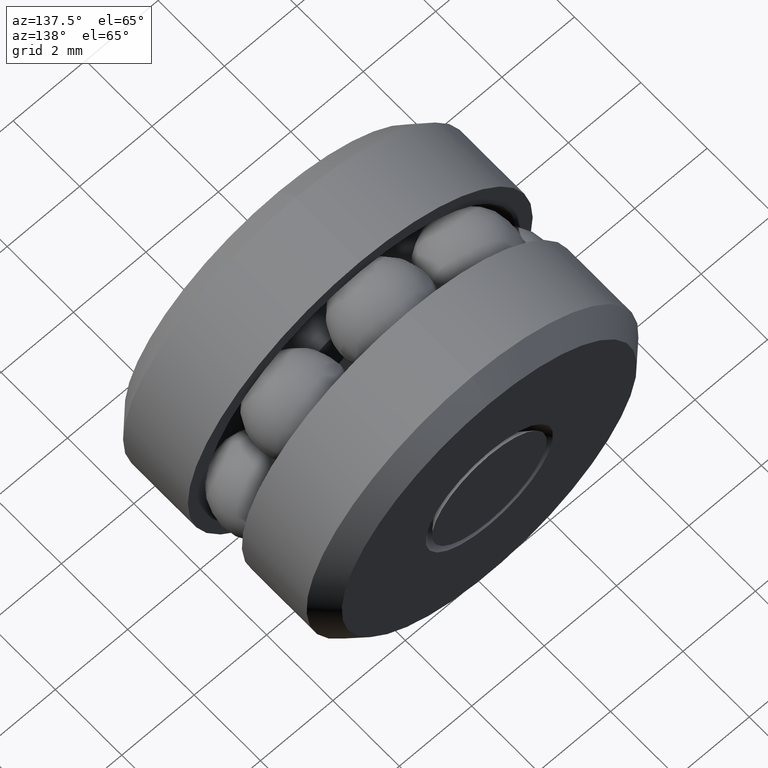
[diagram: clean part render]
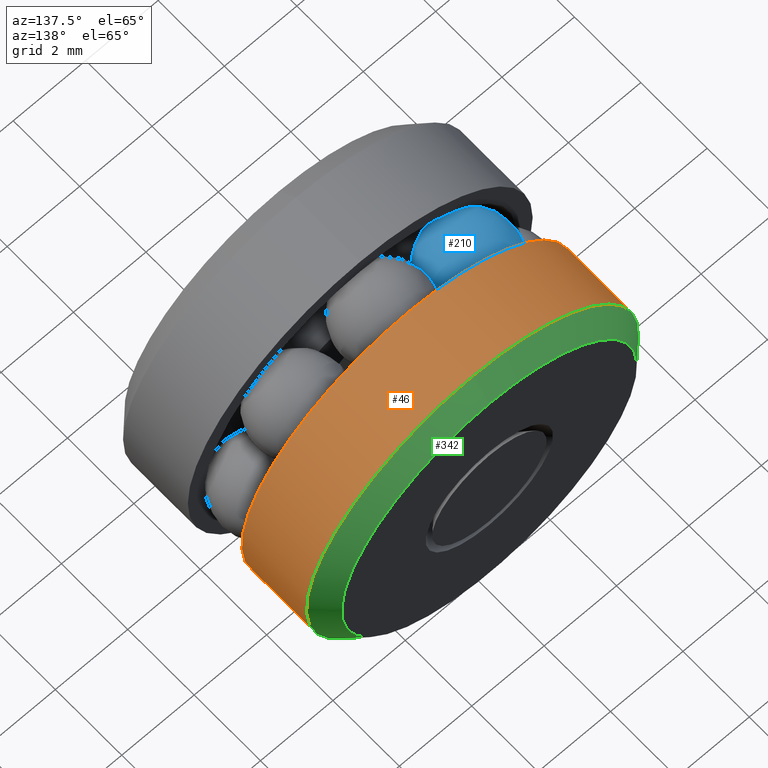
[diagram: same view with three faces highlighted in distinct colors, each labeled with its STEP entity id]
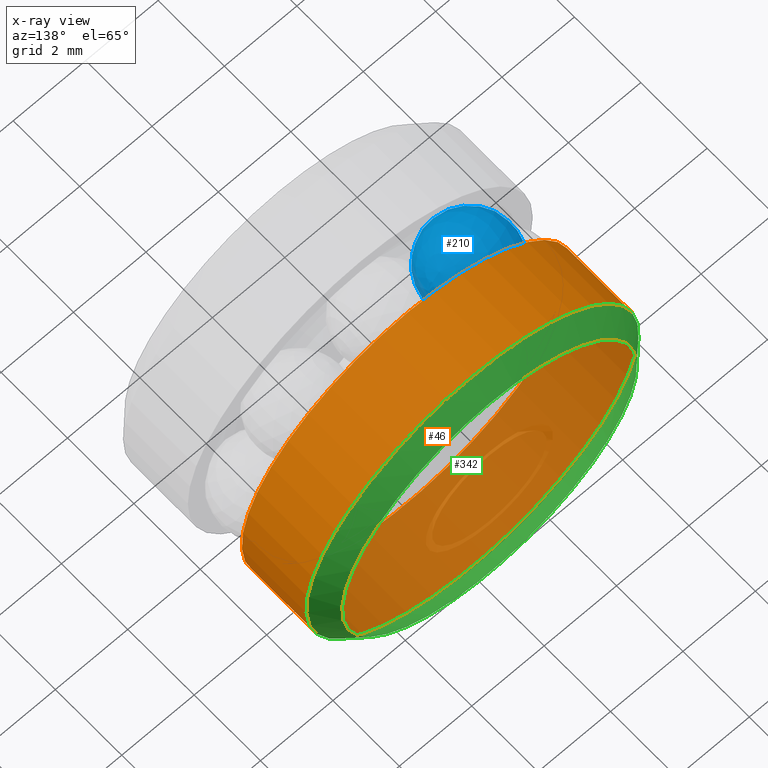
[diagram: x-ray of the same camera — body ghosted, the three highlighted faces saturated]
A machine part, auxiliary view with three faces highlighted in distinct colors.
The next image is the same camera in x-ray (body ghosted, the three faces saturated) — at least one of them is partly hidden behind the body in this view.
Their STEP definitions:

[orange] entity #46 — the highlighted cylindrical surface (bore or boss wall) has radius 4.5847 mm, axis along (-0, 1, -0).
#11 = CYLINDRICAL_SURFACE ( 'NONE', #204, 0.1804999999999999900 ) ;
#12 = AXIS2_PLACEMENT_3D ( 'NONE', #506, #440, #464 ) ;
#46 = ADVANCED_FACE ( 'NONE', ( #549, #212 ), #11, .T. ) ;
#90 = EDGE_CURVE ( 'NONE', #335, #335, #181, .T. ) ;
#144 = DIRECTION ( 'NONE',  ( -0.0000000000000000000, 1.000000000000000000, -0.0000000000000000000 ) ) ;
#162 = CARTESIAN_POINT ( 'NONE',  ( 0.0000000000000000000, 0.1531999999999999800, 0.0000000000000000000 ) ) ;
#168 = CARTESIAN_POINT ( 'NONE',  ( 0.0000000000000000000, 0.2299999999999997300, 0.1804999999999999900 ) ) ;
#181 = CIRCLE ( 'NONE', #12, 0.1804999999999999900 ) ;
#204 = AXIS2_PLACEMENT_3D ( 'NONE', #286, #144, #287 ) ;
#212 = FACE_OUTER_BOUND ( 'NONE', #382, .T. ) ;
#286 = CARTESIAN_POINT ( 'NONE',  ( 0.0000000000000000000, 0.0000000000000000000, 0.0000000000000000000 ) ) ;
#287 = DIRECTION ( 'NONE',  ( 0.0000000000000000000, 0.0000000000000000000, 1.000000000000000000 ) ) ;
#311 = AXIS2_PLACEMENT_3D ( 'NONE', #162, #438, #326 ) ;
#326 = DIRECTION ( 'NONE',  ( 0.0000000000000000000, 0.0000000000000000000, 1.000000000000000000 ) ) ;
#335 = VERTEX_POINT ( 'NONE', #168 ) ;
#351 = VERTEX_POINT ( 'NONE', #547 ) ;
#382 = EDGE_LOOP ( 'NONE', ( #561 ) ) ;
#408 = CIRCLE ( 'NONE', #311, 0.1804999999999999900 ) ;
#410 = EDGE_LOOP ( 'NONE', ( #466 ) ) ;
#438 = DIRECTION ( 'NONE',  ( -0.0000000000000000000, 1.000000000000000000, -0.0000000000000000000 ) ) ;
#440 = DIRECTION ( 'NONE',  ( -0.0000000000000000000, 1.000000000000000000, -0.0000000000000000000 ) ) ;
#464 = DIRECTION ( 'NONE',  ( 0.0000000000000000000, 0.0000000000000000000, 1.000000000000000000 ) ) ;
#466 = ORIENTED_EDGE ( 'NONE', *, *, #469, .T. ) ;
#469 = EDGE_CURVE ( 'NONE', #351, #351, #408, .T. ) ;
#506 = CARTESIAN_POINT ( 'NONE',  ( 0.0000000000000000000, 0.2299999999999997300, 0.0000000000000000000 ) ) ;
#547 = CARTESIAN_POINT ( 'NONE',  ( 0.0000000000000000000, 0.1531999999999999800, 0.1804999999999999900 ) ) ;
#549 = FACE_OUTER_BOUND ( 'NONE', #410, .T. ) ;
#561 = ORIENTED_EDGE ( 'NONE', *, *, #90, .F. ) ;

[blue] entity #210 — the highlighted spherical surface has radius 1.1938 mm.
#117 = DIRECTION ( 'NONE',  ( -0.7071067811865486800, 0.0000000000000000000, -0.7071067811865463500 ) ) ;
#134 = SPHERICAL_SURFACE ( 'NONE', #232, 0.04699999999999998600 ) ;
#183 = DIRECTION ( 'NONE',  ( 0.7071067811865463500, 0.0000000000000000000, -0.7071067811865486800 ) ) ;
#210 = ADVANCED_FACE ( 'NONE', ( ), #134, .T. ) ;
#232 = AXIS2_PLACEMENT_3D ( 'NONE', #437, #117, #183 ) ;
#437 = CARTESIAN_POINT ( 'NONE',  ( -0.09298454172603082300, 0.1249999999999999900, 0.09298454172603115600 ) ) ;

[green] entity #342 — the highlighted conical surface has half-angle 45 deg.
#5 = CONICAL_SURFACE ( 'NONE', #554, 0.1605000000000001100, 0.7853981633974397300 ) ;
#12 = AXIS2_PLACEMENT_3D ( 'NONE', #506, #440, #464 ) ;
#20 = AXIS2_PLACEMENT_3D ( 'NONE', #153, #521, #424 ) ;
#50 = ORIENTED_EDGE ( 'NONE', *, *, #90, .T. ) ;
#54 = FACE_BOUND ( 'NONE', #384, .T. ) ;
#58 = ORIENTED_EDGE ( 'NONE', *, *, #370, .F. ) ;
#76 = CARTESIAN_POINT ( 'NONE',  ( 0.0000000000000000000, 0.2499999999999999700, 0.1605000000000001100 ) ) ;
#90 = EDGE_CURVE ( 'NONE', #335, #335, #181, .T. ) ;
#132 = VERTEX_POINT ( 'NONE', #76 ) ;
#153 = CARTESIAN_POINT ( 'NONE',  ( 0.0000000000000000000, 0.2499999999999999700, 0.0000000000000000000 ) ) ;
#168 = CARTESIAN_POINT ( 'NONE',  ( 0.0000000000000000000, 0.2299999999999997300, 0.1804999999999999900 ) ) ;
#181 = CIRCLE ( 'NONE', #12, 0.1804999999999999900 ) ;
#322 = CIRCLE ( 'NONE', #20, 0.1605000000000001100 ) ;
#335 = VERTEX_POINT ( 'NONE', #168 ) ;
#342 = ADVANCED_FACE ( 'NONE', ( #531, #54 ), #5, .T. ) ;
#370 = EDGE_CURVE ( 'NONE', #132, #132, #322, .T. ) ;
#381 = DIRECTION ( 'NONE',  ( 0.0000000000000000000, 0.0000000000000000000, -1.000000000000000000 ) ) ;
#384 = EDGE_LOOP ( 'NONE', ( #58 ) ) ;
#393 = EDGE_LOOP ( 'NONE', ( #50 ) ) ;
#424 = DIRECTION ( 'NONE',  ( 0.0000000000000000000, 0.0000000000000000000, 1.000000000000000000 ) ) ;
#432 = DIRECTION ( 'NONE',  ( 0.0000000000000000000, -1.000000000000000000, 0.0000000000000000000 ) ) ;
#440 = DIRECTION ( 'NONE',  ( -0.0000000000000000000, 1.000000000000000000, -0.0000000000000000000 ) ) ;
#464 = DIRECTION ( 'NONE',  ( 0.0000000000000000000, 0.0000000000000000000, 1.000000000000000000 ) ) ;
#506 = CARTESIAN_POINT ( 'NONE',  ( 0.0000000000000000000, 0.2299999999999997300, 0.0000000000000000000 ) ) ;
#521 = DIRECTION ( 'NONE',  ( -0.0000000000000000000, 1.000000000000000000, -0.0000000000000000000 ) ) ;
#531 = FACE_OUTER_BOUND ( 'NONE', #393, .T. ) ;
#550 = CARTESIAN_POINT ( 'NONE',  ( 0.0000000000000000000, 0.2499999999999999700, 0.0000000000000000000 ) ) ;
#554 = AXIS2_PLACEMENT_3D ( 'NONE', #550, #432, #381 ) ;